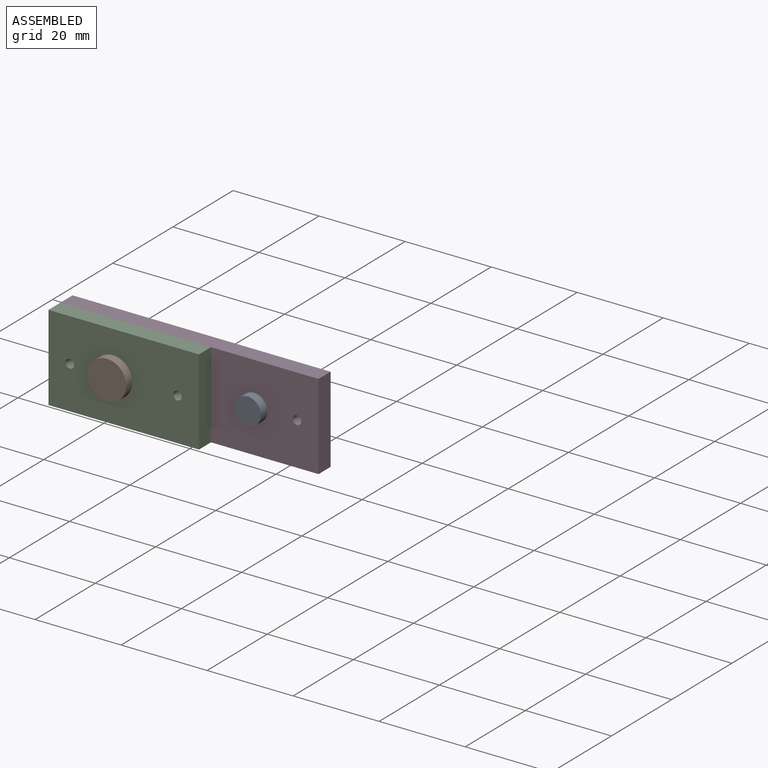
[diagram: assembled view]
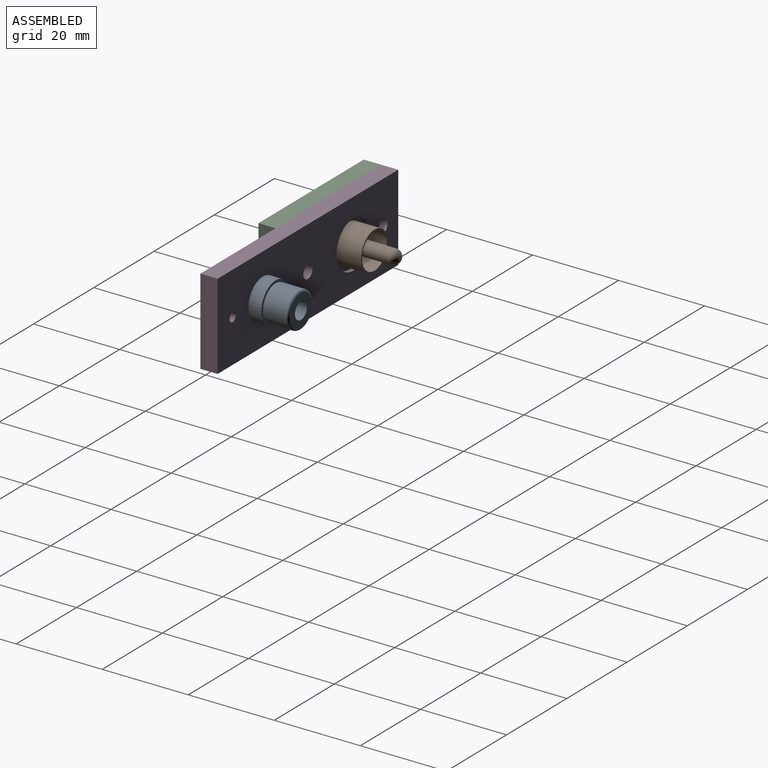
[diagram: assembled view, second angle]
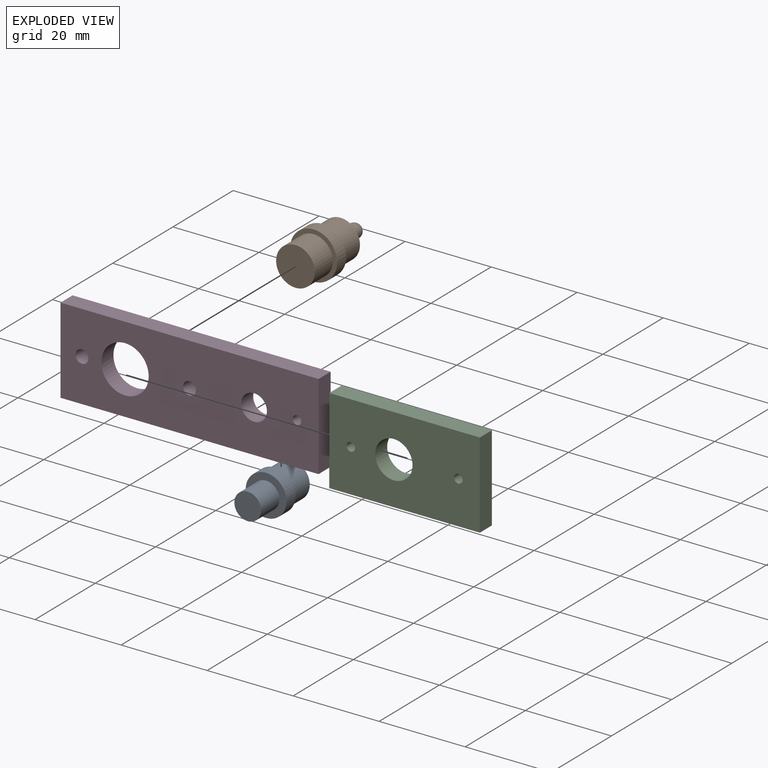
[diagram: exploded view]
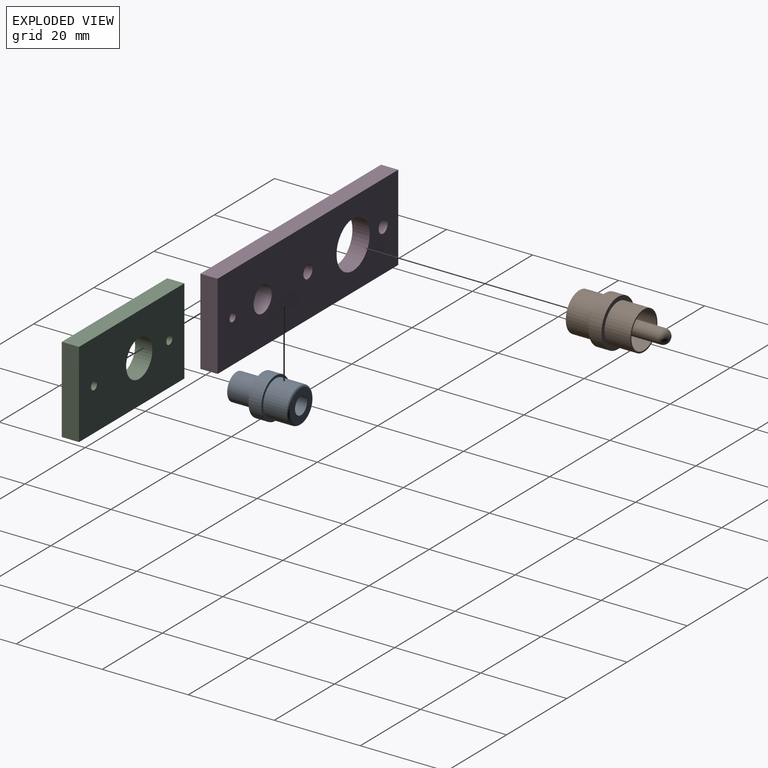
[diagram: exploded view, second angle]
ASSEMBLY  parts=4 mates=3
PART A: 10 faces, bbox 15x9.5x9.5 mm
  f0: plane 9.5x9.5mm, normal (1,0,0), area 40.7mm2, adj f1,f8
  f1: cylinder r=4.75mm len=9.5mm, axis (1,0,0), area 89.5mm2, adj f0,f2
  f2: plane 9.5x9.5mm, normal (-1,0,0), area 16.8mm2, adj f1,f3
  f3: cylinder r=4.15mm len=8.3mm, axis (1,0,0), area 140.8mm2, adj f2,f9
  f4: plane 7.3x7.3mm, normal (-1,0,0), area 29.3mm2, adj f5,f9
  f5: cylinder r=2mm len=13mm, axis (1,0,0), area 163.4mm2, adj f4,f6
  f6: plane 4x4mm, normal (-1,0,0), area 12.6mm2, adj f5
  f7: plane 6.2x6.2mm, normal (1,0,0), area 30.2mm2, adj f8
  f8: cylinder r=3.1mm len=6.2mm, axis (1,0,0), area 118.8mm2, adj f0,f7
  f9: torus R=3.65mm, axis (-1,0,0), area 19.6mm2, adj f3,f4
PART B: 12 faces, bbox 21x11x11 mm
  f0: cylinder r=5.5mm len=11mm, axis (1,0,0), area 103.7mm2, adj f1,f10
  f1: plane 11x11mm, normal (-1,0,0), area 31.4mm2, adj f0,f2
  f2: cylinder r=4.5mm len=9mm, axis (1,0,0), area 169.6mm2, adj f1,f3
  f3: plane 9x9mm, normal (-1,0,0), area 63.6mm2, adj f2
  f4: plane 0.3x0.3mm, normal (1,0,0), area 0.1mm2, adj f11
  f5: cylinder r=1.65mm len=11.4mm, axis (1,0,0), area 118.2mm2, adj f6,f11
  f6: plane 8.3x8.3mm, normal (1,0,0), area 45.6mm2, adj f5,f7
  f7: cylinder r=4.15mm len=8.3mm, axis (1,0,0), area 179.9mm2, adj f6,f8
  f8: plane 9x9mm, normal (1,0,0), area 9.5mm2, adj f7,f9
  f9: cylinder r=4.5mm len=9mm, axis (1,0,0), area 169.6mm2, adj f8,f10
  f10: plane 11x11mm, normal (1,0,0), area 31.4mm2, adj f0,f9
  f11: torus R=0.15mm, axis (-1,0,0), area 16.4mm2, adj f4,f5
PART C: 9 faces, bbox 35x4x20 mm
  f0: plane 35x20mm, normal (0,1,0), area 634.3mm2, adj f1,f2,f3,f4,f5,f6,f7
  f1: plane 20x4mm, normal (-1,0,0), area 80mm2, adj f0,f2,f3,f8
  f2: plane 35x4mm, normal (0,0,-1), area 140mm2, adj f0,f1,f4,f8
  f3: plane 35x4mm, normal (0,0,1), area 140mm2, adj f0,f1,f4,f8
  f4: plane 20x4mm, normal (1,0,0), area 80mm2, adj f0,f2,f3,f8
  f5: cylinder r=1mm len=4mm, axis (0,-1,0), area 25.1mm2, adj f0,f8
  f6: cylinder r=1mm len=4mm, axis (0,-1,0), area 25.1mm2, adj f0,f8
  f7: cylinder r=4.35mm len=8.7mm, axis (0,-1,0), area 109.3mm2, adj f0,f8
  f8: plane 35x20mm, normal (0,-1,0), area 634.3mm2, adj f1,f2,f3,f4,f5,f6,f7
PART D: 11 faces, bbox 60x4x20 mm
  f0: plane 60x20mm, normal (0,1,0), area 1059.4mm2, adj f1,f2,f3,f4,f5,f6,f7,f8
  f1: plane 60x4mm, normal (0,0,1), area 240mm2, adj f0,f3,f4,f10
  f2: cylinder r=1mm len=4mm, axis (0,-1,0), area 25.1mm2, adj f0,f10
  f3: plane 20x4mm, normal (-1,0,0), area 80mm2, adj f0,f1,f5,f10
  f4: plane 20x4mm, normal (1,0,0), area 80mm2, adj f0,f1,f5,f10
  f5: plane 60x4mm, normal (0,0,-1), area 240mm2, adj f0,f3,f4,f10
  f6: cylinder r=3mm len=6mm, axis (0,-1,0), area 75.4mm2, adj f0,f10
  f7: cylinder r=5.5mm len=11mm, axis (0,-1,0), area 138.2mm2, adj f0,f10
  f8: cylinder r=1.5mm len=4mm, axis (0,-1,0), area 37.7mm2, adj f0,f10
  f9: cylinder r=1.5mm len=4mm, axis (0,-1,0), area 37.7mm2, adj f0,f10
  f10: plane 60x20mm, normal (0,-1,0), area 1059.4mm2, adj f1,f2,f3,f4,f5,f6,f7,f8
PLACE A rot(axis=(-0.58,0.58,-0.58),120deg) t=(111,181,-55)mm
PLACE B rot(axis=(0.3,0.3,0.91),95.5deg) t=(81,189,-55)mm
PLACE C at identity
PLACE D at identity fixed
MATE revolute B.f0 <-> C.f7  axis (0,1,0) through (81,177,-55)mm
MATE revolute A.f1 <-> D.f6  axis (0,-1,0) through (111,181,-55)mm
MATE fastened C.f0 <-> D.f10  axis (0,1,0) through (66,177,-45)mm
